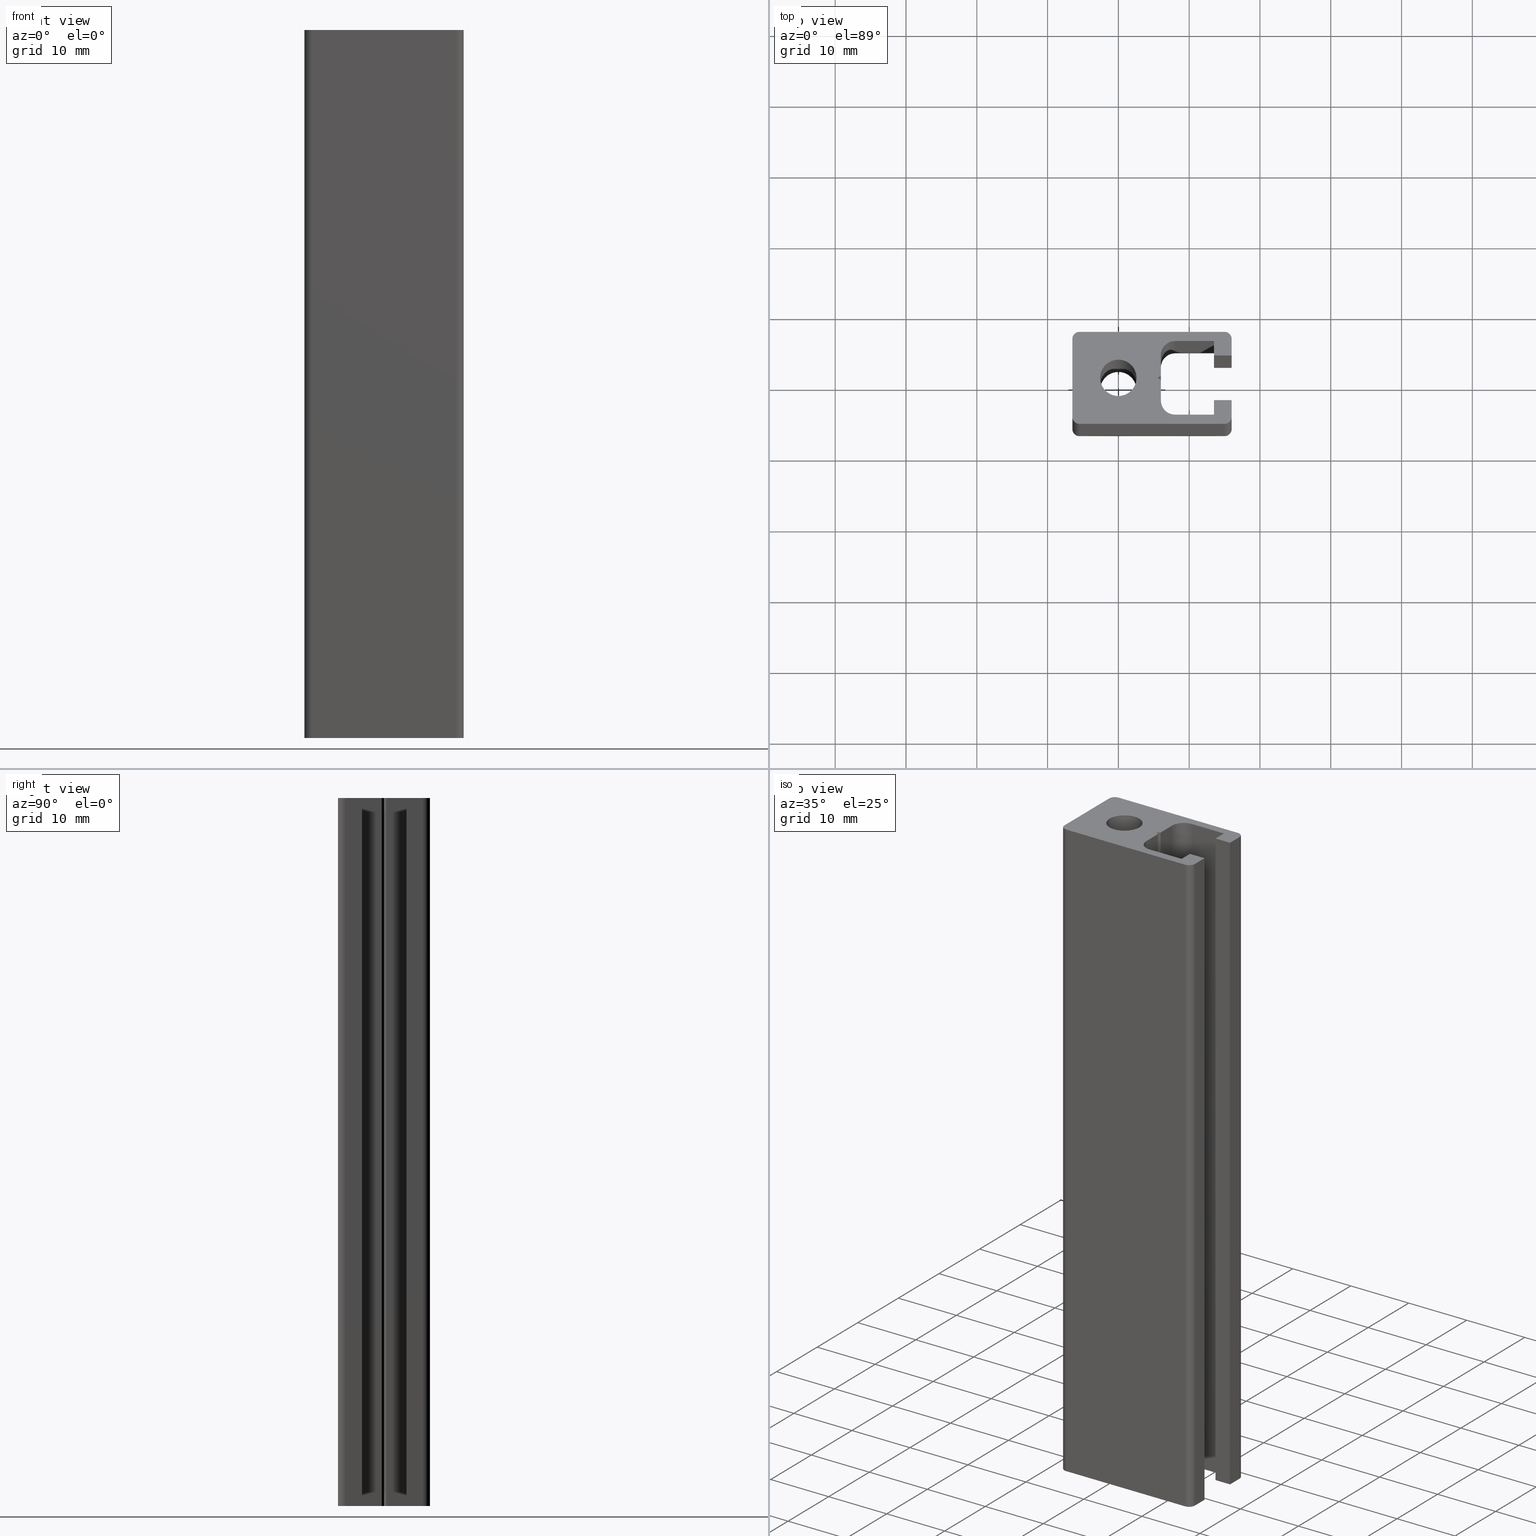
[diagram: canonical four-view strip — front | top / right | iso, engineering-drawing reading convention]
A machine part, canonical four-view strip (front | top / right | iso — engineering-drawing reading convention). The complete STEP part file that produces these views, byte-faithful:
ISO-10303-21;
HEADER;
/* Generated by software containing ST-Developer
 * from STEP Tools, Inc. (www.steptools.com) 
 */

FILE_DESCRIPTION(
/* description */ (''),
/* implementation_level */ '2;1');

FILE_NAME(
/* name */ 
'Q:\\Catalogo\\1_Profili Dierre\\Per Download Web\\Serie 45\\BPRDD0000
023.stp',
/* time_stamp */ '2017-07-12T17:25:28+02:00',
/* author */ ('fzagni'),
/* organization */ (''),
/* preprocessor_version */ 'ST-DEVELOPER v16.1',
/* originating_system */ 'Autodesk Inventor 2016',
/* authorisation */ '');

FILE_SCHEMA (('AUTOMOTIVE_DESIGN { 1 0 10303 214 3 1 1 }'));
ENDSEC;

DATA;
#10=MECHANICAL_DESIGN_GEOMETRIC_PRESENTATION_REPRESENTATION('',(#13),#778);
#11=SHAPE_REPRESENTATION_RELATIONSHIP('SRR','None',#787,#12);
#12=ADVANCED_BREP_SHAPE_REPRESENTATION('',(#14),#777);
#13=STYLED_ITEM('',(#796),#14);
#14=MANIFOLD_SOLID_BREP('Solido1',#472);
#15=LINE('',#650,#66);
#16=LINE('',#652,#67);
#17=LINE('',#654,#68);
#18=LINE('',#655,#69);
#19=LINE('',#658,#70);
#20=LINE('',#660,#71);
#21=LINE('',#661,#72);
#22=LINE('',#664,#73);
#23=LINE('',#666,#74);
#24=LINE('',#667,#75);
#25=LINE('',#670,#76);
#26=LINE('',#672,#77);
#27=LINE('',#673,#78);
#28=LINE('',#678,#79);
#29=LINE('',#682,#80);
#30=LINE('',#684,#81);
#31=LINE('',#685,#82);
#32=LINE('',#688,#83);
#33=LINE('',#690,#84);
#34=LINE('',#691,#85);
#35=LINE('',#694,#86);
#36=LINE('',#696,#87);
#37=LINE('',#697,#88);
#38=LINE('',#701,#89);
#39=LINE('',#703,#90);
#40=LINE('',#705,#91);
#41=LINE('',#706,#92);
#42=LINE('',#709,#93);
#43=LINE('',#711,#94);
#44=LINE('',#712,#95);
#45=LINE('',#715,#96);
#46=LINE('',#717,#97);
#47=LINE('',#718,#98);
#48=LINE('',#724,#99);
#49=LINE('',#726,#100);
#50=LINE('',#727,#101);
#51=LINE('',#730,#102);
#52=LINE('',#732,#103);
#53=LINE('',#733,#104);
#54=LINE('',#738,#105);
#55=LINE('',#742,#106);
#56=LINE('',#746,#107);
#57=LINE('',#750,#108);
#58=LINE('',#754,#109);
#59=LINE('',#755,#110);
#60=LINE('',#758,#111);
#61=LINE('',#762,#112);
#62=LINE('',#763,#113);
#63=LINE('',#766,#114);
#64=LINE('',#770,#115);
#65=LINE('',#771,#116);
#66=VECTOR('',#522,2.875);
#67=VECTOR('',#523,100.);
#68=VECTOR('',#524,2.875);
#69=VECTOR('',#525,100.);
#70=VECTOR('',#528,0.566620208576858);
#71=VECTOR('',#529,100.);
#72=VECTOR('',#530,0.566620208576858);
#73=VECTOR('',#533,0.566620208576856);
#74=VECTOR('',#534,100.);
#75=VECTOR('',#535,0.566620208576856);
#76=VECTOR('',#538,2.875);
#77=VECTOR('',#539,100.);
#78=VECTOR('',#540,2.875);
#79=VECTOR('',#545,100.);
#80=VECTOR('',#550,5.5);
#81=VECTOR('',#551,100.);
#82=VECTOR('',#552,5.5);
#83=VECTOR('',#555,2.05);
#84=VECTOR('',#556,100.);
#85=VECTOR('',#557,2.05);
#86=VECTOR('',#560,2.50000000000002);
#87=VECTOR('',#561,100.);
#88=VECTOR('',#562,2.50000000000002);
#89=VECTOR('',#565,2.49999999999999);
#90=VECTOR('',#566,100.);
#91=VECTOR('',#567,2.49999999999999);
#92=VECTOR('',#568,100.);
#93=VECTOR('',#571,2.05);
#94=VECTOR('',#572,100.);
#95=VECTOR('',#573,2.05);
#96=VECTOR('',#576,5.5);
#97=VECTOR('',#577,100.);
#98=VECTOR('',#578,5.5);
#99=VECTOR('',#587,2.35000000000001);
#100=VECTOR('',#588,100.);
#101=VECTOR('',#589,2.35000000000001);
#102=VECTOR('',#592,2.35);
#103=VECTOR('',#593,100.);
#104=VECTOR('',#594,2.35);
#105=VECTOR('',#599,20.5);
#106=VECTOR('',#602,11.);
#107=VECTOR('',#605,20.5);
#108=VECTOR('',#610,100.);
#109=VECTOR('',#615,100.);
#110=VECTOR('',#616,20.5);
#111=VECTOR('',#619,100.);
#112=VECTOR('',#624,100.);
#113=VECTOR('',#625,11.);
#114=VECTOR('',#628,100.);
#115=VECTOR('',#633,100.);
#116=VECTOR('',#634,20.5);
#117=PLANE('',#477);
#118=PLANE('',#478);
#119=PLANE('',#479);
#120=PLANE('',#480);
#121=PLANE('',#484);
#122=PLANE('',#485);
#123=PLANE('',#486);
#124=PLANE('',#487);
#125=PLANE('',#488);
#126=PLANE('',#489);
#127=PLANE('',#493);
#128=PLANE('',#494);
#129=PLANE('',#495);
#130=PLANE('',#502);
#131=PLANE('',#505);
#132=PLANE('',#508);
#133=PLANE('',#511);
#134=FACE_BOUND('',#162,.T.);
#135=FACE_BOUND('',#178,.T.);
#136=FACE_BOUND('',#187,.T.);
#137=FACE_OUTER_BOUND('',#161,.T.);
#138=FACE_OUTER_BOUND('',#163,.T.);
#139=FACE_OUTER_BOUND('',#164,.T.);
#140=FACE_OUTER_BOUND('',#165,.T.);
#141=FACE_OUTER_BOUND('',#166,.T.);
#142=FACE_OUTER_BOUND('',#167,.T.);
#143=FACE_OUTER_BOUND('',#168,.T.);
#144=FACE_OUTER_BOUND('',#169,.T.);
#145=FACE_OUTER_BOUND('',#170,.T.);
#146=FACE_OUTER_BOUND('',#171,.T.);
#147=FACE_OUTER_BOUND('',#172,.T.);
#148=FACE_OUTER_BOUND('',#173,.T.);
#149=FACE_OUTER_BOUND('',#174,.T.);
#150=FACE_OUTER_BOUND('',#175,.T.);
#151=FACE_OUTER_BOUND('',#176,.T.);
#152=FACE_OUTER_BOUND('',#177,.T.);
#153=FACE_OUTER_BOUND('',#179,.T.);
#154=FACE_OUTER_BOUND('',#180,.T.);
#155=FACE_OUTER_BOUND('',#181,.T.);
#156=FACE_OUTER_BOUND('',#182,.T.);
#157=FACE_OUTER_BOUND('',#183,.T.);
#158=FACE_OUTER_BOUND('',#184,.T.);
#159=FACE_OUTER_BOUND('',#185,.T.);
#160=FACE_OUTER_BOUND('',#186,.T.);
#161=EDGE_LOOP('',(#311));
#162=EDGE_LOOP('',(#312));
#163=EDGE_LOOP('',(#313,#314,#315,#316));
#164=EDGE_LOOP('',(#317,#318,#319,#320));
#165=EDGE_LOOP('',(#321,#322,#323,#324));
#166=EDGE_LOOP('',(#325,#326,#327,#328));
#167=EDGE_LOOP('',(#329,#330,#331,#332));
#168=EDGE_LOOP('',(#333,#334,#335,#336));
#169=EDGE_LOOP('',(#337,#338,#339,#340));
#170=EDGE_LOOP('',(#341,#342,#343,#344));
#171=EDGE_LOOP('',(#345,#346,#347,#348));
#172=EDGE_LOOP('',(#349,#350,#351,#352));
#173=EDGE_LOOP('',(#353,#354,#355,#356));
#174=EDGE_LOOP('',(#357,#358,#359,#360));
#175=EDGE_LOOP('',(#361,#362,#363,#364));
#176=EDGE_LOOP('',(#365,#366,#367,#368));
#177=EDGE_LOOP('',(#369,#370,#371,#372,#373,#374,#375,#376,#377,#378,#379,
#380,#381,#382,#383,#384,#385,#386,#387,#388,#389));
#178=EDGE_LOOP('',(#390));
#179=EDGE_LOOP('',(#391,#392,#393,#394));
#180=EDGE_LOOP('',(#395,#396,#397,#398));
#181=EDGE_LOOP('',(#399,#400,#401,#402));
#182=EDGE_LOOP('',(#403,#404,#405,#406));
#183=EDGE_LOOP('',(#407,#408,#409,#410));
#184=EDGE_LOOP('',(#411,#412,#413,#414));
#185=EDGE_LOOP('',(#415,#416,#417,#418));
#186=EDGE_LOOP('',(#419,#420,#421,#422,#423,#424,#425,#426,#427,#428,#429,
#430,#431,#432,#433,#434,#435,#436,#437,#438,#439));
#187=EDGE_LOOP('',(#440));
#188=CIRCLE('',#475,2.575);
#189=CIRCLE('',#476,2.575);
#190=CIRCLE('',#482,2.);
#191=CIRCLE('',#483,2.);
#192=CIRCLE('',#491,2.);
#193=CIRCLE('',#492,2.);
#194=CIRCLE('',#496,1.);
#195=CIRCLE('',#497,1.);
#196=CIRCLE('',#498,1.);
#197=CIRCLE('',#499,0.999999999999996);
#198=CIRCLE('',#501,0.999999999999996);
#199=CIRCLE('',#504,1.);
#200=CIRCLE('',#507,1.);
#201=CIRCLE('',#510,1.);
#202=VERTEX_POINT('',#643);
#203=VERTEX_POINT('',#645);
#204=VERTEX_POINT('',#648);
#205=VERTEX_POINT('',#649);
#206=VERTEX_POINT('',#651);
#207=VERTEX_POINT('',#653);
#208=VERTEX_POINT('',#657);
#209=VERTEX_POINT('',#659);
#210=VERTEX_POINT('',#663);
#211=VERTEX_POINT('',#665);
#212=VERTEX_POINT('',#669);
#213=VERTEX_POINT('',#671);
#214=VERTEX_POINT('',#675);
#215=VERTEX_POINT('',#677);
#216=VERTEX_POINT('',#681);
#217=VERTEX_POINT('',#683);
#218=VERTEX_POINT('',#687);
#219=VERTEX_POINT('',#689);
#220=VERTEX_POINT('',#693);
#221=VERTEX_POINT('',#695);
#222=VERTEX_POINT('',#699);
#223=VERTEX_POINT('',#700);
#224=VERTEX_POINT('',#702);
#225=VERTEX_POINT('',#704);
#226=VERTEX_POINT('',#708);
#227=VERTEX_POINT('',#710);
#228=VERTEX_POINT('',#714);
#229=VERTEX_POINT('',#716);
#230=VERTEX_POINT('',#723);
#231=VERTEX_POINT('',#725);
#232=VERTEX_POINT('',#729);
#233=VERTEX_POINT('',#731);
#234=VERTEX_POINT('',#735);
#235=VERTEX_POINT('',#737);
#236=VERTEX_POINT('',#739);
#237=VERTEX_POINT('',#741);
#238=VERTEX_POINT('',#743);
#239=VERTEX_POINT('',#745);
#240=VERTEX_POINT('',#749);
#241=VERTEX_POINT('',#753);
#242=VERTEX_POINT('',#757);
#243=VERTEX_POINT('',#761);
#244=VERTEX_POINT('',#765);
#245=VERTEX_POINT('',#769);
#246=EDGE_CURVE('',#202,#202,#188,.T.);
#247=EDGE_CURVE('',#203,#203,#189,.T.);
#248=EDGE_CURVE('',#204,#205,#15,.T.);
#249=EDGE_CURVE('',#206,#204,#16,.T.);
#250=EDGE_CURVE('',#207,#206,#17,.T.);
#251=EDGE_CURVE('',#207,#205,#18,.T.);
#252=EDGE_CURVE('',#208,#204,#19,.T.);
#253=EDGE_CURVE('',#209,#208,#20,.T.);
#254=EDGE_CURVE('',#206,#209,#21,.T.);
#255=EDGE_CURVE('',#210,#208,#22,.T.);
#256=EDGE_CURVE('',#211,#210,#23,.T.);
#257=EDGE_CURVE('',#209,#211,#24,.T.);
#258=EDGE_CURVE('',#212,#210,#25,.T.);
#259=EDGE_CURVE('',#213,#212,#26,.T.);
#260=EDGE_CURVE('',#211,#213,#27,.T.);
#261=EDGE_CURVE('',#214,#212,#190,.T.);
#262=EDGE_CURVE('',#215,#214,#28,.T.);
#263=EDGE_CURVE('',#213,#215,#191,.T.);
#264=EDGE_CURVE('',#216,#214,#29,.T.);
#265=EDGE_CURVE('',#217,#216,#30,.T.);
#266=EDGE_CURVE('',#215,#217,#31,.T.);
#267=EDGE_CURVE('',#218,#216,#32,.T.);
#268=EDGE_CURVE('',#219,#218,#33,.T.);
#269=EDGE_CURVE('',#217,#219,#34,.T.);
#270=EDGE_CURVE('',#220,#218,#35,.T.);
#271=EDGE_CURVE('',#221,#220,#36,.T.);
#272=EDGE_CURVE('',#219,#221,#37,.T.);
#273=EDGE_CURVE('',#222,#223,#38,.T.);
#274=EDGE_CURVE('',#224,#222,#39,.T.);
#275=EDGE_CURVE('',#225,#224,#40,.T.);
#276=EDGE_CURVE('',#223,#225,#41,.T.);
#277=EDGE_CURVE('',#226,#222,#42,.T.);
#278=EDGE_CURVE('',#227,#226,#43,.T.);
#279=EDGE_CURVE('',#224,#227,#44,.T.);
#280=EDGE_CURVE('',#228,#226,#45,.T.);
#281=EDGE_CURVE('',#229,#228,#46,.T.);
#282=EDGE_CURVE('',#227,#229,#47,.T.);
#283=EDGE_CURVE('',#205,#228,#192,.T.);
#284=EDGE_CURVE('',#229,#207,#193,.T.);
#285=EDGE_CURVE('',#230,#225,#48,.T.);
#286=EDGE_CURVE('',#230,#231,#49,.T.);
#287=EDGE_CURVE('',#231,#223,#50,.T.);
#288=EDGE_CURVE('',#220,#232,#51,.T.);
#289=EDGE_CURVE('',#233,#232,#52,.T.);
#290=EDGE_CURVE('',#221,#233,#53,.T.);
#291=EDGE_CURVE('',#234,#231,#194,.T.);
#292=EDGE_CURVE('',#235,#234,#54,.T.);
#293=EDGE_CURVE('',#236,#235,#195,.T.);
#294=EDGE_CURVE('',#237,#236,#55,.T.);
#295=EDGE_CURVE('',#238,#237,#196,.T.);
#296=EDGE_CURVE('',#239,#238,#56,.T.);
#297=EDGE_CURVE('',#232,#239,#197,.T.);
#298=EDGE_CURVE('',#240,#239,#57,.T.);
#299=EDGE_CURVE('',#233,#240,#198,.T.);
#300=EDGE_CURVE('',#241,#238,#58,.T.);
#301=EDGE_CURVE('',#240,#241,#59,.T.);
#302=EDGE_CURVE('',#242,#237,#60,.T.);
#303=EDGE_CURVE('',#241,#242,#199,.T.);
#304=EDGE_CURVE('',#243,#236,#61,.T.);
#305=EDGE_CURVE('',#242,#243,#62,.T.);
#306=EDGE_CURVE('',#244,#235,#63,.T.);
#307=EDGE_CURVE('',#243,#244,#200,.T.);
#308=EDGE_CURVE('',#245,#234,#64,.T.);
#309=EDGE_CURVE('',#244,#245,#65,.T.);
#310=EDGE_CURVE('',#245,#230,#201,.T.);
#311=ORIENTED_EDGE('',*,*,#246,.F.);
#312=ORIENTED_EDGE('',*,*,#247,.F.);
#313=ORIENTED_EDGE('',*,*,#248,.F.);
#314=ORIENTED_EDGE('',*,*,#249,.F.);
#315=ORIENTED_EDGE('',*,*,#250,.F.);
#316=ORIENTED_EDGE('',*,*,#251,.T.);
#317=ORIENTED_EDGE('',*,*,#252,.F.);
#318=ORIENTED_EDGE('',*,*,#253,.F.);
#319=ORIENTED_EDGE('',*,*,#254,.F.);
#320=ORIENTED_EDGE('',*,*,#249,.T.);
#321=ORIENTED_EDGE('',*,*,#255,.F.);
#322=ORIENTED_EDGE('',*,*,#256,.F.);
#323=ORIENTED_EDGE('',*,*,#257,.F.);
#324=ORIENTED_EDGE('',*,*,#253,.T.);
#325=ORIENTED_EDGE('',*,*,#258,.F.);
#326=ORIENTED_EDGE('',*,*,#259,.F.);
#327=ORIENTED_EDGE('',*,*,#260,.F.);
#328=ORIENTED_EDGE('',*,*,#256,.T.);
#329=ORIENTED_EDGE('',*,*,#261,.F.);
#330=ORIENTED_EDGE('',*,*,#262,.F.);
#331=ORIENTED_EDGE('',*,*,#263,.F.);
#332=ORIENTED_EDGE('',*,*,#259,.T.);
#333=ORIENTED_EDGE('',*,*,#264,.F.);
#334=ORIENTED_EDGE('',*,*,#265,.F.);
#335=ORIENTED_EDGE('',*,*,#266,.F.);
#336=ORIENTED_EDGE('',*,*,#262,.T.);
#337=ORIENTED_EDGE('',*,*,#267,.F.);
#338=ORIENTED_EDGE('',*,*,#268,.F.);
#339=ORIENTED_EDGE('',*,*,#269,.F.);
#340=ORIENTED_EDGE('',*,*,#265,.T.);
#341=ORIENTED_EDGE('',*,*,#270,.F.);
#342=ORIENTED_EDGE('',*,*,#271,.F.);
#343=ORIENTED_EDGE('',*,*,#272,.F.);
#344=ORIENTED_EDGE('',*,*,#268,.T.);
#345=ORIENTED_EDGE('',*,*,#273,.F.);
#346=ORIENTED_EDGE('',*,*,#274,.F.);
#347=ORIENTED_EDGE('',*,*,#275,.F.);
#348=ORIENTED_EDGE('',*,*,#276,.F.);
#349=ORIENTED_EDGE('',*,*,#277,.F.);
#350=ORIENTED_EDGE('',*,*,#278,.F.);
#351=ORIENTED_EDGE('',*,*,#279,.F.);
#352=ORIENTED_EDGE('',*,*,#274,.T.);
#353=ORIENTED_EDGE('',*,*,#280,.F.);
#354=ORIENTED_EDGE('',*,*,#281,.F.);
#355=ORIENTED_EDGE('',*,*,#282,.F.);
#356=ORIENTED_EDGE('',*,*,#278,.T.);
#357=ORIENTED_EDGE('',*,*,#283,.F.);
#358=ORIENTED_EDGE('',*,*,#251,.F.);
#359=ORIENTED_EDGE('',*,*,#284,.F.);
#360=ORIENTED_EDGE('',*,*,#281,.T.);
#361=ORIENTED_EDGE('',*,*,#276,.T.);
#362=ORIENTED_EDGE('',*,*,#285,.F.);
#363=ORIENTED_EDGE('',*,*,#286,.T.);
#364=ORIENTED_EDGE('',*,*,#287,.T.);
#365=ORIENTED_EDGE('',*,*,#271,.T.);
#366=ORIENTED_EDGE('',*,*,#288,.T.);
#367=ORIENTED_EDGE('',*,*,#289,.F.);
#368=ORIENTED_EDGE('',*,*,#290,.F.);
#369=ORIENTED_EDGE('',*,*,#270,.T.);
#370=ORIENTED_EDGE('',*,*,#267,.T.);
#371=ORIENTED_EDGE('',*,*,#264,.T.);
#372=ORIENTED_EDGE('',*,*,#261,.T.);
#373=ORIENTED_EDGE('',*,*,#258,.T.);
#374=ORIENTED_EDGE('',*,*,#255,.T.);
#375=ORIENTED_EDGE('',*,*,#252,.T.);
#376=ORIENTED_EDGE('',*,*,#248,.T.);
#377=ORIENTED_EDGE('',*,*,#283,.T.);
#378=ORIENTED_EDGE('',*,*,#280,.T.);
#379=ORIENTED_EDGE('',*,*,#277,.T.);
#380=ORIENTED_EDGE('',*,*,#273,.T.);
#381=ORIENTED_EDGE('',*,*,#287,.F.);
#382=ORIENTED_EDGE('',*,*,#291,.F.);
#383=ORIENTED_EDGE('',*,*,#292,.F.);
#384=ORIENTED_EDGE('',*,*,#293,.F.);
#385=ORIENTED_EDGE('',*,*,#294,.F.);
#386=ORIENTED_EDGE('',*,*,#295,.F.);
#387=ORIENTED_EDGE('',*,*,#296,.F.);
#388=ORIENTED_EDGE('',*,*,#297,.F.);
#389=ORIENTED_EDGE('',*,*,#288,.F.);
#390=ORIENTED_EDGE('',*,*,#246,.T.);
#391=ORIENTED_EDGE('',*,*,#297,.T.);
#392=ORIENTED_EDGE('',*,*,#298,.F.);
#393=ORIENTED_EDGE('',*,*,#299,.F.);
#394=ORIENTED_EDGE('',*,*,#289,.T.);
#395=ORIENTED_EDGE('',*,*,#296,.T.);
#396=ORIENTED_EDGE('',*,*,#300,.F.);
#397=ORIENTED_EDGE('',*,*,#301,.F.);
#398=ORIENTED_EDGE('',*,*,#298,.T.);
#399=ORIENTED_EDGE('',*,*,#295,.T.);
#400=ORIENTED_EDGE('',*,*,#302,.F.);
#401=ORIENTED_EDGE('',*,*,#303,.F.);
#402=ORIENTED_EDGE('',*,*,#300,.T.);
#403=ORIENTED_EDGE('',*,*,#294,.T.);
#404=ORIENTED_EDGE('',*,*,#304,.F.);
#405=ORIENTED_EDGE('',*,*,#305,.F.);
#406=ORIENTED_EDGE('',*,*,#302,.T.);
#407=ORIENTED_EDGE('',*,*,#293,.T.);
#408=ORIENTED_EDGE('',*,*,#306,.F.);
#409=ORIENTED_EDGE('',*,*,#307,.F.);
#410=ORIENTED_EDGE('',*,*,#304,.T.);
#411=ORIENTED_EDGE('',*,*,#292,.T.);
#412=ORIENTED_EDGE('',*,*,#308,.F.);
#413=ORIENTED_EDGE('',*,*,#309,.F.);
#414=ORIENTED_EDGE('',*,*,#306,.T.);
#415=ORIENTED_EDGE('',*,*,#291,.T.);
#416=ORIENTED_EDGE('',*,*,#286,.F.);
#417=ORIENTED_EDGE('',*,*,#310,.F.);
#418=ORIENTED_EDGE('',*,*,#308,.T.);
#419=ORIENTED_EDGE('',*,*,#272,.T.);
#420=ORIENTED_EDGE('',*,*,#290,.T.);
#421=ORIENTED_EDGE('',*,*,#299,.T.);
#422=ORIENTED_EDGE('',*,*,#301,.T.);
#423=ORIENTED_EDGE('',*,*,#303,.T.);
#424=ORIENTED_EDGE('',*,*,#305,.T.);
#425=ORIENTED_EDGE('',*,*,#307,.T.);
#426=ORIENTED_EDGE('',*,*,#309,.T.);
#427=ORIENTED_EDGE('',*,*,#310,.T.);
#428=ORIENTED_EDGE('',*,*,#285,.T.);
#429=ORIENTED_EDGE('',*,*,#275,.T.);
#430=ORIENTED_EDGE('',*,*,#279,.T.);
#431=ORIENTED_EDGE('',*,*,#282,.T.);
#432=ORIENTED_EDGE('',*,*,#284,.T.);
#433=ORIENTED_EDGE('',*,*,#250,.T.);
#434=ORIENTED_EDGE('',*,*,#254,.T.);
#435=ORIENTED_EDGE('',*,*,#257,.T.);
#436=ORIENTED_EDGE('',*,*,#260,.T.);
#437=ORIENTED_EDGE('',*,*,#263,.T.);
#438=ORIENTED_EDGE('',*,*,#266,.T.);
#439=ORIENTED_EDGE('',*,*,#269,.T.);
#440=ORIENTED_EDGE('',*,*,#247,.T.);
#441=CYLINDRICAL_SURFACE('',#474,2.575);
#442=CYLINDRICAL_SURFACE('',#481,2.);
#443=CYLINDRICAL_SURFACE('',#490,2.);
#444=CYLINDRICAL_SURFACE('',#500,0.999999999999996);
#445=CYLINDRICAL_SURFACE('',#503,1.);
#446=CYLINDRICAL_SURFACE('',#506,1.);
#447=CYLINDRICAL_SURFACE('',#509,1.);
#448=ADVANCED_FACE('',(#137,#134),#441,.F.);
#449=ADVANCED_FACE('',(#138),#117,.F.);
#450=ADVANCED_FACE('',(#139),#118,.F.);
#451=ADVANCED_FACE('',(#140),#119,.F.);
#452=ADVANCED_FACE('',(#141),#120,.F.);
#453=ADVANCED_FACE('',(#142),#442,.F.);
#454=ADVANCED_FACE('',(#143),#121,.F.);
#455=ADVANCED_FACE('',(#144),#122,.F.);
#456=ADVANCED_FACE('',(#145),#123,.F.);
#457=ADVANCED_FACE('',(#146),#124,.F.);
#458=ADVANCED_FACE('',(#147),#125,.F.);
#459=ADVANCED_FACE('',(#148),#126,.F.);
#460=ADVANCED_FACE('',(#149),#443,.F.);
#461=ADVANCED_FACE('',(#150),#127,.T.);
#462=ADVANCED_FACE('',(#151),#128,.T.);
#463=ADVANCED_FACE('',(#152,#135),#129,.T.);
#464=ADVANCED_FACE('',(#153),#444,.T.);
#465=ADVANCED_FACE('',(#154),#130,.T.);
#466=ADVANCED_FACE('',(#155),#445,.T.);
#467=ADVANCED_FACE('',(#156),#131,.T.);
#468=ADVANCED_FACE('',(#157),#446,.T.);
#469=ADVANCED_FACE('',(#158),#132,.T.);
#470=ADVANCED_FACE('',(#159),#447,.T.);
#471=ADVANCED_FACE('',(#160,#136),#133,.F.);
#472=CLOSED_SHELL('',(#448,#449,#450,#451,#452,#453,#454,#455,#456,#457,
#458,#459,#460,#461,#462,#463,#464,#465,#466,#467,#468,#469,#470,#471));
#473=AXIS2_PLACEMENT_3D('placement',#641,#512,#513);
#474=AXIS2_PLACEMENT_3D('',#642,#514,#515);
#475=AXIS2_PLACEMENT_3D('',#644,#516,#517);
#476=AXIS2_PLACEMENT_3D('',#646,#518,#519);
#477=AXIS2_PLACEMENT_3D('',#647,#520,#521);
#478=AXIS2_PLACEMENT_3D('',#656,#526,#527);
#479=AXIS2_PLACEMENT_3D('',#662,#531,#532);
#480=AXIS2_PLACEMENT_3D('',#668,#536,#537);
#481=AXIS2_PLACEMENT_3D('',#674,#541,#542);
#482=AXIS2_PLACEMENT_3D('',#676,#543,#544);
#483=AXIS2_PLACEMENT_3D('',#679,#546,#547);
#484=AXIS2_PLACEMENT_3D('',#680,#548,#549);
#485=AXIS2_PLACEMENT_3D('',#686,#553,#554);
#486=AXIS2_PLACEMENT_3D('',#692,#558,#559);
#487=AXIS2_PLACEMENT_3D('',#698,#563,#564);
#488=AXIS2_PLACEMENT_3D('',#707,#569,#570);
#489=AXIS2_PLACEMENT_3D('',#713,#574,#575);
#490=AXIS2_PLACEMENT_3D('',#719,#579,#580);
#491=AXIS2_PLACEMENT_3D('',#720,#581,#582);
#492=AXIS2_PLACEMENT_3D('',#721,#583,#584);
#493=AXIS2_PLACEMENT_3D('',#722,#585,#586);
#494=AXIS2_PLACEMENT_3D('',#728,#590,#591);
#495=AXIS2_PLACEMENT_3D('',#734,#595,#596);
#496=AXIS2_PLACEMENT_3D('',#736,#597,#598);
#497=AXIS2_PLACEMENT_3D('',#740,#600,#601);
#498=AXIS2_PLACEMENT_3D('',#744,#603,#604);
#499=AXIS2_PLACEMENT_3D('',#747,#606,#607);
#500=AXIS2_PLACEMENT_3D('',#748,#608,#609);
#501=AXIS2_PLACEMENT_3D('',#751,#611,#612);
#502=AXIS2_PLACEMENT_3D('',#752,#613,#614);
#503=AXIS2_PLACEMENT_3D('',#756,#617,#618);
#504=AXIS2_PLACEMENT_3D('',#759,#620,#621);
#505=AXIS2_PLACEMENT_3D('',#760,#622,#623);
#506=AXIS2_PLACEMENT_3D('',#764,#626,#627);
#507=AXIS2_PLACEMENT_3D('',#767,#629,#630);
#508=AXIS2_PLACEMENT_3D('',#768,#631,#632);
#509=AXIS2_PLACEMENT_3D('',#772,#635,#636);
#510=AXIS2_PLACEMENT_3D('',#773,#637,#638);
#511=AXIS2_PLACEMENT_3D('',#774,#639,#640);
#512=DIRECTION('axis',(0.,0.,1.));
#513=DIRECTION('refdir',(1.,0.,0.));
#514=DIRECTION('center_axis',(0.,0.,1.));
#515=DIRECTION('ref_axis',(-1.,0.,0.));
#516=DIRECTION('center_axis',(0.,0.,-1.));
#517=DIRECTION('ref_axis',(-1.,0.,0.));
#518=DIRECTION('center_axis',(0.,0.,1.));
#519=DIRECTION('ref_axis',(-1.,0.,0.));
#520=DIRECTION('center_axis',(-1.,-3.86164530304402E-16,0.));
#521=DIRECTION('ref_axis',(0.,0.,1.));
#522=DIRECTION('',(-3.86164530304402E-16,1.,0.));
#523=DIRECTION('',(0.,0.,1.));
#524=DIRECTION('',(3.86164530304402E-16,-1.,0.));
#525=DIRECTION('',(0.,0.,1.));
#526=DIRECTION('center_axis',(-0.573576436351045,0.819152044288993,0.));
#527=DIRECTION('ref_axis',(0.,0.,1.));
#528=DIRECTION('',(0.819152044288993,0.573576436351045,0.));
#529=DIRECTION('',(0.,0.,1.));
#530=DIRECTION('',(-0.819152044288993,-0.573576436351045,0.));
#531=DIRECTION('center_axis',(-0.573576436351047,-0.819152044288991,0.));
#532=DIRECTION('ref_axis',(0.,0.,1.));
#533=DIRECTION('',(-0.819152044288991,0.573576436351047,0.));
#534=DIRECTION('',(0.,0.,1.));
#535=DIRECTION('',(0.819152044288991,-0.573576436351047,0.));
#536=DIRECTION('center_axis',(-1.,0.,0.));
#537=DIRECTION('ref_axis',(0.,0.,1.));
#538=DIRECTION('',(0.,1.,0.));
#539=DIRECTION('',(0.,0.,1.));
#540=DIRECTION('',(0.,-1.,0.));
#541=DIRECTION('center_axis',(0.,0.,1.));
#542=DIRECTION('ref_axis',(-1.,5.55111512312578E-16,0.));
#543=DIRECTION('center_axis',(0.,0.,-1.));
#544=DIRECTION('ref_axis',(-1.,5.55111512312578E-16,0.));
#545=DIRECTION('',(0.,0.,1.));
#546=DIRECTION('center_axis',(0.,0.,1.));
#547=DIRECTION('ref_axis',(-1.,5.55111512312578E-16,0.));
#548=DIRECTION('center_axis',(-2.01858731750028E-16,-1.,0.));
#549=DIRECTION('ref_axis',(0.,0.,-1.));
#550=DIRECTION('',(-1.,2.01858731750029E-16,0.));
#551=DIRECTION('',(0.,0.,1.));
#552=DIRECTION('',(1.,-2.01858731750029E-16,0.));
#553=DIRECTION('center_axis',(1.,-1.08314441426845E-15,0.));
#554=DIRECTION('ref_axis',(0.,0.,-1.));
#555=DIRECTION('',(-1.08314441426845E-15,-1.,0.));
#556=DIRECTION('',(0.,0.,1.));
#557=DIRECTION('',(1.08314441426845E-15,1.,0.));
#558=DIRECTION('center_axis',(0.,-1.,0.));
#559=DIRECTION('ref_axis',(0.,0.,-1.));
#560=DIRECTION('',(-1.,0.,0.));
#561=DIRECTION('',(0.,0.,1.));
#562=DIRECTION('',(1.,0.,0.));
#563=DIRECTION('center_axis',(2.22044604925032E-16,1.,0.));
#564=DIRECTION('ref_axis',(0.,0.,1.));
#565=DIRECTION('',(1.,-2.22044604925032E-16,0.));
#566=DIRECTION('',(0.,0.,1.));
#567=DIRECTION('',(-1.,2.22044604925032E-16,0.));
#568=DIRECTION('',(0.,0.,-1.));
#569=DIRECTION('center_axis',(1.,-1.08314441426845E-15,0.));
#570=DIRECTION('ref_axis',(0.,0.,-1.));
#571=DIRECTION('',(-1.08314441426845E-15,-1.,0.));
#572=DIRECTION('',(0.,0.,1.));
#573=DIRECTION('',(1.08314441426845E-15,1.,0.));
#574=DIRECTION('center_axis',(2.01858731750028E-16,1.,0.));
#575=DIRECTION('ref_axis',(0.,0.,1.));
#576=DIRECTION('',(1.,-2.01858731750028E-16,0.));
#577=DIRECTION('',(0.,0.,1.));
#578=DIRECTION('',(-1.,2.01858731750028E-16,0.));
#579=DIRECTION('center_axis',(0.,0.,1.));
#580=DIRECTION('ref_axis',(5.55111512312579E-16,1.,0.));
#581=DIRECTION('center_axis',(0.,0.,-1.));
#582=DIRECTION('ref_axis',(5.55111512312579E-16,1.,0.));
#583=DIRECTION('center_axis',(0.,0.,1.));
#584=DIRECTION('ref_axis',(5.55111512312579E-16,1.,0.));
#585=DIRECTION('center_axis',(1.,0.,0.));
#586=DIRECTION('ref_axis',(0.,1.,0.));
#587=DIRECTION('',(0.,-1.,0.));
#588=DIRECTION('',(0.,0.,1.));
#589=DIRECTION('',(0.,-1.,0.));
#590=DIRECTION('center_axis',(1.,0.,0.));
#591=DIRECTION('ref_axis',(0.,1.,0.));
#592=DIRECTION('',(0.,-1.,0.));
#593=DIRECTION('',(0.,0.,1.));
#594=DIRECTION('',(0.,-1.,0.));
#595=DIRECTION('center_axis',(0.,0.,1.));
#596=DIRECTION('ref_axis',(1.,0.,0.));
#597=DIRECTION('center_axis',(0.,0.,-1.));
#598=DIRECTION('ref_axis',(1.,0.,0.));
#599=DIRECTION('',(1.,-1.08314441426845E-16,0.));
#600=DIRECTION('center_axis',(0.,0.,-1.));
#601=DIRECTION('ref_axis',(0.,1.,0.));
#602=DIRECTION('',(0.,1.,0.));
#603=DIRECTION('center_axis',(0.,0.,-1.));
#604=DIRECTION('ref_axis',(-1.,-1.11022302462516E-15,0.));
#605=DIRECTION('',(-1.,-1.08314441426845E-16,0.));
#606=DIRECTION('center_axis',(0.,0.,-1.));
#607=DIRECTION('ref_axis',(0.,-1.,0.));
#608=DIRECTION('center_axis',(0.,0.,1.));
#609=DIRECTION('ref_axis',(0.,-1.,0.));
#610=DIRECTION('',(0.,0.,1.));
#611=DIRECTION('center_axis',(0.,0.,-1.));
#612=DIRECTION('ref_axis',(0.,-1.,0.));
#613=DIRECTION('center_axis',(1.08314441426845E-16,-1.,0.));
#614=DIRECTION('ref_axis',(1.,8.88178419700125E-17,0.));
#615=DIRECTION('',(0.,0.,1.));
#616=DIRECTION('',(-1.,-1.08314441426845E-16,0.));
#617=DIRECTION('center_axis',(0.,0.,1.));
#618=DIRECTION('ref_axis',(-1.,-1.11022302462516E-15,0.));
#619=DIRECTION('',(0.,0.,1.));
#620=DIRECTION('center_axis',(0.,0.,-1.));
#621=DIRECTION('ref_axis',(-1.,-1.11022302462516E-15,0.));
#622=DIRECTION('center_axis',(-1.,0.,0.));
#623=DIRECTION('ref_axis',(0.,-1.,0.));
#624=DIRECTION('',(0.,0.,1.));
#625=DIRECTION('',(0.,1.,0.));
#626=DIRECTION('center_axis',(0.,0.,1.));
#627=DIRECTION('ref_axis',(0.,1.,0.));
#628=DIRECTION('',(0.,0.,1.));
#629=DIRECTION('center_axis',(0.,0.,-1.));
#630=DIRECTION('ref_axis',(0.,1.,0.));
#631=DIRECTION('center_axis',(1.08314441426845E-16,1.,0.));
#632=DIRECTION('ref_axis',(-1.,8.88178419700125E-17,0.));
#633=DIRECTION('',(0.,0.,1.));
#634=DIRECTION('',(1.,-1.08314441426845E-16,0.));
#635=DIRECTION('center_axis',(0.,0.,1.));
#636=DIRECTION('ref_axis',(1.,0.,0.));
#637=DIRECTION('center_axis',(0.,0.,-1.));
#638=DIRECTION('ref_axis',(1.,0.,0.));
#639=DIRECTION('center_axis',(0.,0.,1.));
#640=DIRECTION('ref_axis',(1.,0.,0.));
#641=CARTESIAN_POINT('',(0.,0.,0.));
#642=CARTESIAN_POINT('Origin',(0.,0.,0.));
#643=CARTESIAN_POINT('',(2.575,-3.15346550780443E-16,100.));
#644=CARTESIAN_POINT('Origin',(0.,0.,100.));
#645=CARTESIAN_POINT('',(2.575,3.15346550780443E-16,0.));
#646=CARTESIAN_POINT('Origin',(0.,0.,0.));
#647=CARTESIAN_POINT('Origin',(6.,0.324999999999998,0.));
#648=CARTESIAN_POINT('',(6.,0.324999999999998,100.));
#649=CARTESIAN_POINT('',(6.,3.2,100.));
#650=CARTESIAN_POINT('',(6.,0.162499999999999,100.));
#651=CARTESIAN_POINT('',(6.,0.324999999999998,0.));
#652=CARTESIAN_POINT('',(6.,0.324999999999998,0.));
#653=CARTESIAN_POINT('',(6.,3.2,0.));
#654=CARTESIAN_POINT('',(6.,0.162499999999999,0.));
#655=CARTESIAN_POINT('',(6.,3.2,0.));
#656=CARTESIAN_POINT('Origin',(5.53585189780881,-1.72084568816899E-15,0.));
#657=CARTESIAN_POINT('',(5.53585189780881,-1.72084568816899E-15,100.));
#658=CARTESIAN_POINT('',(5.27219462867628,-0.184614807350386,100.));
#659=CARTESIAN_POINT('',(5.53585189780881,-1.72084568816899E-15,0.));
#660=CARTESIAN_POINT('',(5.53585189780881,-1.72084568816899E-15,0.));
#661=CARTESIAN_POINT('',(5.27219462867628,-0.184614807350386,0.));
#662=CARTESIAN_POINT('Origin',(6.,-0.325000000000002,0.));
#663=CARTESIAN_POINT('',(6.,-0.325000000000002,100.));
#664=CARTESIAN_POINT('',(5.50426867977187,0.0221148073503838,100.));
#665=CARTESIAN_POINT('',(6.,-0.325000000000002,0.));
#666=CARTESIAN_POINT('',(6.,-0.325000000000002,0.));
#667=CARTESIAN_POINT('',(5.50426867977187,0.0221148073503838,0.));
#668=CARTESIAN_POINT('Origin',(6.,-3.2,0.));
#669=CARTESIAN_POINT('',(6.,-3.2,100.));
#670=CARTESIAN_POINT('',(6.,-1.6,100.));
#671=CARTESIAN_POINT('',(6.,-3.2,0.));
#672=CARTESIAN_POINT('',(6.,-3.2,0.));
#673=CARTESIAN_POINT('',(6.,-1.6,0.));
#674=CARTESIAN_POINT('Origin',(8.,-3.2,0.));
#675=CARTESIAN_POINT('',(8.,-5.2,100.));
#676=CARTESIAN_POINT('Origin',(8.,-3.2,100.));
#677=CARTESIAN_POINT('',(8.,-5.2,0.));
#678=CARTESIAN_POINT('',(8.,-5.2,0.));
#679=CARTESIAN_POINT('Origin',(8.,-3.2,0.));
#680=CARTESIAN_POINT('Origin',(13.5,-5.2,0.));
#681=CARTESIAN_POINT('',(13.5,-5.2,100.));
#682=CARTESIAN_POINT('',(9.125,-5.2,100.));
#683=CARTESIAN_POINT('',(13.5,-5.2,0.));
#684=CARTESIAN_POINT('',(13.5,-5.2,0.));
#685=CARTESIAN_POINT('',(9.125,-5.2,0.));
#686=CARTESIAN_POINT('Origin',(13.5,-3.15,0.));
#687=CARTESIAN_POINT('',(13.5,-3.15,100.));
#688=CARTESIAN_POINT('',(13.5,-1.57500000000001,100.));
#689=CARTESIAN_POINT('',(13.5,-3.15,0.));
#690=CARTESIAN_POINT('',(13.5,-3.15,0.));
#691=CARTESIAN_POINT('',(13.5,-1.57500000000001,0.));
#692=CARTESIAN_POINT('Origin',(16.,-3.15,0.));
#693=CARTESIAN_POINT('',(16.,-3.15,100.));
#694=CARTESIAN_POINT('',(10.375,-3.15,100.));
#695=CARTESIAN_POINT('',(16.,-3.15,0.));
#696=CARTESIAN_POINT('',(16.,-3.15,0.));
#697=CARTESIAN_POINT('',(10.375,-3.15,0.));
#698=CARTESIAN_POINT('Origin',(13.5,3.15,0.));
#699=CARTESIAN_POINT('',(13.5,3.15,100.));
#700=CARTESIAN_POINT('',(16.,3.15,100.));
#701=CARTESIAN_POINT('',(9.125,3.15,100.));
#702=CARTESIAN_POINT('',(13.5,3.15,0.));
#703=CARTESIAN_POINT('',(13.5,3.15,0.));
#704=CARTESIAN_POINT('',(16.,3.15,0.));
#705=CARTESIAN_POINT('',(9.125,3.15,0.));
#706=CARTESIAN_POINT('',(16.,3.14999999999999,0.));
#707=CARTESIAN_POINT('Origin',(13.5,5.2,0.));
#708=CARTESIAN_POINT('',(13.5,5.2,100.));
#709=CARTESIAN_POINT('',(13.5,2.59999999999999,100.));
#710=CARTESIAN_POINT('',(13.5,5.2,0.));
#711=CARTESIAN_POINT('',(13.5,5.2,0.));
#712=CARTESIAN_POINT('',(13.5,2.59999999999999,0.));
#713=CARTESIAN_POINT('Origin',(8.,5.2,0.));
#714=CARTESIAN_POINT('',(8.,5.2,100.));
#715=CARTESIAN_POINT('',(6.375,5.2,100.));
#716=CARTESIAN_POINT('',(8.,5.2,0.));
#717=CARTESIAN_POINT('',(8.,5.2,0.));
#718=CARTESIAN_POINT('',(6.375,5.2,0.));
#719=CARTESIAN_POINT('Origin',(8.,3.2,0.));
#720=CARTESIAN_POINT('Origin',(8.,3.2,100.));
#721=CARTESIAN_POINT('Origin',(8.,3.2,0.));
#722=CARTESIAN_POINT('Origin',(16.,-5.5,0.));
#723=CARTESIAN_POINT('',(16.,5.5,0.));
#724=CARTESIAN_POINT('',(16.,-2.75,0.));
#725=CARTESIAN_POINT('',(16.,5.5,100.));
#726=CARTESIAN_POINT('',(16.,5.5,0.));
#727=CARTESIAN_POINT('',(16.,-2.75,100.));
#728=CARTESIAN_POINT('Origin',(16.,-5.5,0.));
#729=CARTESIAN_POINT('',(16.,-5.5,100.));
#730=CARTESIAN_POINT('',(16.,-2.75,100.));
#731=CARTESIAN_POINT('',(16.,-5.5,0.));
#732=CARTESIAN_POINT('',(16.,-5.5,0.));
#733=CARTESIAN_POINT('',(16.,-2.75,0.));
#734=CARTESIAN_POINT('Origin',(4.75,0.,100.));
#735=CARTESIAN_POINT('',(15.,6.5,100.));
#736=CARTESIAN_POINT('Origin',(15.,5.5,100.));
#737=CARTESIAN_POINT('',(-5.5,6.5,100.));
#738=CARTESIAN_POINT('',(9.875,6.5,100.));
#739=CARTESIAN_POINT('',(-6.5,5.5,100.));
#740=CARTESIAN_POINT('Origin',(-5.5,5.5,100.));
#741=CARTESIAN_POINT('',(-6.5,-5.5,100.));
#742=CARTESIAN_POINT('',(-6.5,2.75,100.));
#743=CARTESIAN_POINT('',(-5.5,-6.5,100.));
#744=CARTESIAN_POINT('Origin',(-5.5,-5.5,100.));
#745=CARTESIAN_POINT('',(15.,-6.5,100.));
#746=CARTESIAN_POINT('',(-0.374999999999999,-6.5,100.));
#747=CARTESIAN_POINT('Origin',(15.,-5.5,100.));
#748=CARTESIAN_POINT('Origin',(15.,-5.5,0.));
#749=CARTESIAN_POINT('',(15.,-6.5,0.));
#750=CARTESIAN_POINT('',(15.,-6.5,0.));
#751=CARTESIAN_POINT('Origin',(15.,-5.5,0.));
#752=CARTESIAN_POINT('Origin',(-5.5,-6.5,0.));
#753=CARTESIAN_POINT('',(-5.5,-6.5,0.));
#754=CARTESIAN_POINT('',(-5.5,-6.5,0.));
#755=CARTESIAN_POINT('',(-0.374999999999999,-6.5,0.));
#756=CARTESIAN_POINT('Origin',(-5.5,-5.5,0.));
#757=CARTESIAN_POINT('',(-6.5,-5.5,0.));
#758=CARTESIAN_POINT('',(-6.5,-5.5,0.));
#759=CARTESIAN_POINT('Origin',(-5.5,-5.5,0.));
#760=CARTESIAN_POINT('Origin',(-6.5,5.5,0.));
#761=CARTESIAN_POINT('',(-6.5,5.5,0.));
#762=CARTESIAN_POINT('',(-6.5,5.5,0.));
#763=CARTESIAN_POINT('',(-6.5,2.75,0.));
#764=CARTESIAN_POINT('Origin',(-5.5,5.5,0.));
#765=CARTESIAN_POINT('',(-5.5,6.5,0.));
#766=CARTESIAN_POINT('',(-5.5,6.5,0.));
#767=CARTESIAN_POINT('Origin',(-5.5,5.5,0.));
#768=CARTESIAN_POINT('Origin',(15.,6.5,0.));
#769=CARTESIAN_POINT('',(15.,6.5,0.));
#770=CARTESIAN_POINT('',(15.,6.5,0.));
#771=CARTESIAN_POINT('',(9.875,6.5,0.));
#772=CARTESIAN_POINT('Origin',(15.,5.5,0.));
#773=CARTESIAN_POINT('Origin',(15.,5.5,0.));
#774=CARTESIAN_POINT('Origin',(4.75,0.,0.));
#775=UNCERTAINTY_MEASURE_WITH_UNIT(LENGTH_MEASURE(0.01),#779,
'DISTANCE_ACCURACY_VALUE',
'Maximum model space distance between geometric entities at asserted c
onnectivities');
#776=UNCERTAINTY_MEASURE_WITH_UNIT(LENGTH_MEASURE(1.E-6),#779,
'DISTANCE_ACCURACY_VALUE',
'Maximum model space distance between geometric entities at asserted c
onnectivities');
#777=(
GEOMETRIC_REPRESENTATION_CONTEXT(3)
GLOBAL_UNCERTAINTY_ASSIGNED_CONTEXT((#775))
GLOBAL_UNIT_ASSIGNED_CONTEXT((#779,#782,#780))
REPRESENTATION_CONTEXT('','3D')
);
#778=(
GEOMETRIC_REPRESENTATION_CONTEXT(3)
GLOBAL_UNCERTAINTY_ASSIGNED_CONTEXT((#776))
GLOBAL_UNIT_ASSIGNED_CONTEXT((#779,#782,#780))
REPRESENTATION_CONTEXT('','3D')
);
#779=(
LENGTH_UNIT()
NAMED_UNIT(*)
SI_UNIT(.MILLI.,.METRE.)
);
#780=(
NAMED_UNIT(*)
SI_UNIT($,.STERADIAN.)
SOLID_ANGLE_UNIT()
);
#781=DIMENSIONAL_EXPONENTS(0.,0.,0.,0.,0.,0.,0.);
#782=(
CONVERSION_BASED_UNIT('degree',#784)
NAMED_UNIT(#781)
PLANE_ANGLE_UNIT()
);
#783=(
NAMED_UNIT(*)
PLANE_ANGLE_UNIT()
SI_UNIT($,.RADIAN.)
);
#784=PLANE_ANGLE_MEASURE_WITH_UNIT(PLANE_ANGLE_MEASURE(0.01745329252),#783);
#785=SHAPE_DEFINITION_REPRESENTATION(#786,#787);
#786=PRODUCT_DEFINITION_SHAPE('',$,#789);
#787=SHAPE_REPRESENTATION('',(#473),#777);
#788=PRODUCT_DEFINITION_CONTEXT('part definition',#793,'design');
#789=PRODUCT_DEFINITION('BPRDD00000','BPRDD00000',#790,#788);
#790=PRODUCT_DEFINITION_FORMATION('',$,#795);
#791=PRODUCT_RELATED_PRODUCT_CATEGORY('BPRDD00000','BPRDD00000',(#795));
#792=APPLICATION_PROTOCOL_DEFINITION('international standard',
'automotive_design',2009,#793);
#793=APPLICATION_CONTEXT(
'Core Data for Automotive Mechanical Design Process');
#794=PRODUCT_CONTEXT('part definition',#793,'mechanical');
#795=PRODUCT('BPRDD00000','BPRDD00000',$,(#794));
#796=PRESENTATION_STYLE_ASSIGNMENT((#797));
#797=SURFACE_STYLE_USAGE(.BOTH.,#798);
#798=SURFACE_SIDE_STYLE('',(#799));
#799=SURFACE_STYLE_FILL_AREA(#800);
#800=FILL_AREA_STYLE('',(#801));
#801=FILL_AREA_STYLE_COLOUR('',#802);
#802=COLOUR_RGB('',0.698039215686274,0.698039215686274,0.698039215686274);
ENDSEC;
END-ISO-10303-21;
